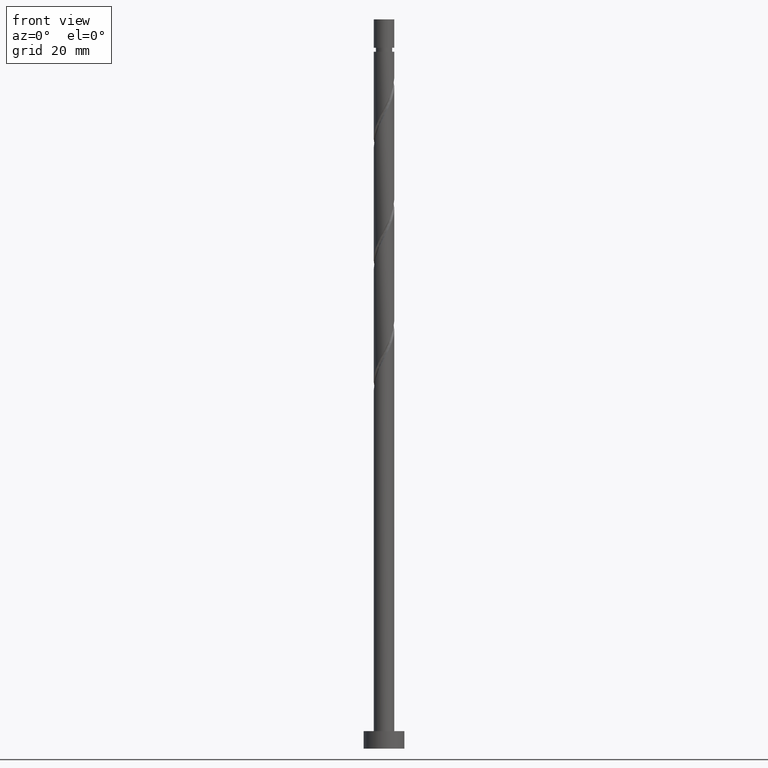
[diagram: clean part render]
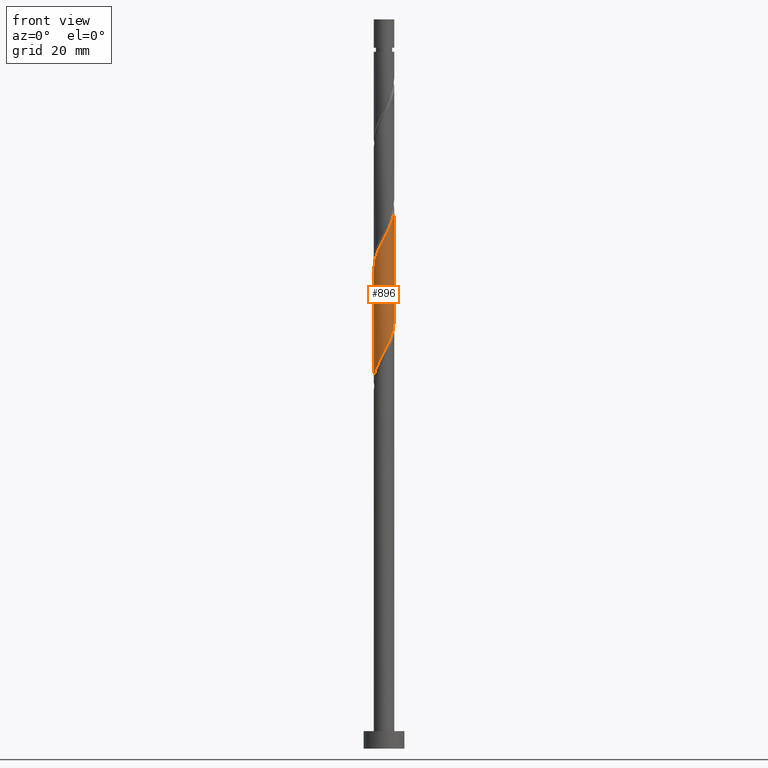
[diagram: same view with one face highlighted and labeled with its STEP entity id]
A machine part, front view. The second image highlights one B-rep face of the part: STEP entity #896.
In plain terms, the highlighted cylindrical surface (edge-blend (fillet) strip) has radius 1.75 mm, axis along (-0, -0, -1).
Its self-contained STEP definition (entity closure, byte-faithful):
#8 = EDGE_CURVE ( 'NONE', #813, #845, #542, .T. ) ;
#17 = CARTESIAN_POINT ( 'NONE',  ( 0.4741420785523611237, -1.707194785046613816, 68.92689447984147932 ) ) ;
#45 = CARTESIAN_POINT ( 'NONE',  ( 1.387052916738139796, -1.102455872546618920, 71.01022781317480792 ) ) ;
#49 = VECTOR ( 'NONE', #920, 1000.000000000000000 ) ;
#62 = CARTESIAN_POINT ( 'NONE',  ( 1.750000000000000000, 2.143131898507867804E-16, 125.0000000000000000 ) ) ;
#66 = CARTESIAN_POINT ( 'NONE',  ( 1.750000000000000000, 2.578813678711391292E-15, 73.23753025464507971 ) ) ;
#179 = CARTESIAN_POINT ( 'NONE',  ( -1.738675734985620558, -0.1987628953608118199, 63.19772781317481503 ) ) ;
#187 = CARTESIAN_POINT ( 'NONE',  ( 1.592157774964681805, -0.7263150966485025783, 91.32272781317482213 ) ) ;
#199 = CARTESIAN_POINT ( 'NONE',  ( -0.7263150966485025783, -1.592157774964681805, 86.11439447984147932 ) ) ;
#216 = CARTESIAN_POINT ( 'NONE',  ( -0.1987628953608127635, -1.738675734985623000, 87.15606114650815073 ) ) ;
#231 =( BOUNDED_CURVE ( )  B_SPLINE_CURVE ( 2, ( #1406, #1042, #1529, #808, #1544, #450, #340, #1270, #199, #332, #216, #573, #1390, #1399, #1277, #560, #464, #691, #187, #801, #1294, #1535, #582 ),
 .UNSPECIFIED., .F., .T. ) 
 B_SPLINE_CURVE_WITH_KNOTS ( ( 3, 2, 2, 2, 2, 2, 2, 2, 2, 2, 2, 3 ),
 ( 0.3045322023138552492, 0.3125000000000000000, 0.3249999999999999556, 0.3375000000000000222, 0.3499999999999999778, 0.3625000000000000444, 0.3750000000000000000, 0.3874999999999999556, 0.4000000000000000222, 0.4124999999999999778, 0.4250000000000000444, 0.4295322023138553047 ),
 .UNSPECIFIED. ) 
 CURVE ( )  GEOMETRIC_REPRESENTATION_ITEM ( )  RATIONAL_B_SPLINE_CURVE ( ( 0.9039174447099437293, 0.9019565955404731383, 0.9090909090909216062, 0.8978984914501375592, 0.9090909090909216062, 0.8978984914501375592, 0.9090909090909216062, 0.8978984914501375592, 0.9090909090909216062, 0.8978984914501375592, 0.9090909090909216062, 0.8978984914501375592, 0.9090909090909216062, 0.8978984914501375592, 0.9090909090909216062, 0.8978984914501375592, 0.9090909090909216062, 0.8978984914501375592, 0.9090909090909216062, 0.8978984914501375592, 0.9090909090909216062, 0.9050328050005858049, 0.9039174447099436183 ) ) 
 REPRESENTATION_ITEM ( '' )  );
#254 = CARTESIAN_POINT ( 'NONE',  ( 0.9784881147446409244, -1.477120764882745352, 69.96856114650815073 ) ) ;
#324 = CARTESIAN_POINT ( 'NONE',  ( -1.750000000000000000, 0.000000000000000000, 125.0000000000000000 ) ) ;
#332 = CARTESIAN_POINT ( 'NONE',  ( -0.4741420785523625669, -1.707194785046616925, 86.63522781317483634 ) ) ;
#340 = CARTESIAN_POINT ( 'NONE',  ( -1.182770515741392581, -1.289788318714684356, 85.07272781317482213 ) ) ;
#345 = CYLINDRICAL_SURFACE ( 'NONE', #1540, 1.750000000000000000 ) ;
#354 = CARTESIAN_POINT ( 'NONE',  ( 0.000000000000000000, 0.000000000000000000, 125.0000000000000000 ) ) ;
#384 = CARTESIAN_POINT ( 'NONE',  ( -0.6198749181438971689, -1.659843315075372860, 66.84356114650816494 ) ) ;
#450 = CARTESIAN_POINT ( 'NONE',  ( -1.387052916738142905, -1.102455872546620474, 84.55189447984147932 ) ) ;
#464 = CARTESIAN_POINT ( 'NONE',  ( 1.289788318714684356, -1.182770515741392581, 90.28106114650812231 ) ) ;
#520 = VERTEX_POINT ( 'NONE', #882 ) ;
#542 =( BOUNDED_CURVE ( )  B_SPLINE_CURVE ( 2, ( #1488, #878, #761, #1248, #1130, #45, #1011, #254, #1342, #17, #1377, #771, #1456, #384, #1089, #1472, #1259, #543, #1574, #1251, #179, #849, #655 ),
 .UNSPECIFIED., .F., .T. ) 
 B_SPLINE_CURVE_WITH_KNOTS ( ( 3, 2, 2, 2, 2, 2, 2, 2, 2, 2, 2, 3 ),
 ( 0.8045322023138550271, 0.8125000000000000000, 0.8249999999999999556, 0.8375000000000000222, 0.8499999999999999778, 0.8625000000000000444, 0.8750000000000000000, 0.8874999999999999556, 0.9000000000000000222, 0.9124999999999999778, 0.9250000000000000444, 0.9295322023138553602 ),
 .UNSPECIFIED. ) 
 CURVE ( )  GEOMETRIC_REPRESENTATION_ITEM ( )  RATIONAL_B_SPLINE_CURVE ( ( 0.9039174447099374010, 0.9019565955404664770, 0.9090909090909150558, 0.8978984914501311199, 0.9090909090909150558, 0.8978984914501311199, 0.9090909090909150558, 0.8978984914501311199, 0.9090909090909150558, 0.8978984914501311199, 0.9090909090909150558, 0.8978984914501311199, 0.9090909090909150558, 0.8978984914501311199, 0.9090909090909150558, 0.8978984914501311199, 0.9090909090909150558, 0.8978984914501311199, 0.9090909090909150558, 0.8978984914501311199, 0.9090909090909150558, 0.9050328050005793656, 0.9039174447099371790 ) ) 
 REPRESENTATION_ITEM ( '' )  );
#543 = CARTESIAN_POINT ( 'NONE',  ( -1.477120764882744908, -0.9784881147446409244, 64.76022781317480792 ) ) ;
#547 = CARTESIAN_POINT ( 'NONE',  ( -1.750000000000003109, -1.611758549194608562E-15, 82.32459203837122175 ) ) ;
#560 = CARTESIAN_POINT ( 'NONE',  ( 1.102455872546620030, -1.387052916738142905, 89.76022781317483634 ) ) ;
#562 = LINE ( 'NONE', #62, #49 ) ;
#566 = EDGE_LOOP ( 'NONE', ( #969, #1200, #1323, #1283 ) ) ;
#573 = CARTESIAN_POINT ( 'NONE',  ( 0.07661628783073691495, -1.770156684924629964, 87.67689447984149353 ) ) ;
#582 = CARTESIAN_POINT ( 'NONE',  ( 1.750000000000003109, 1.349379250488509398E-15, 92.74125870503786473 ) ) ;
#646 = LINE ( 'NONE', #324, #1568 ) ;
#655 = CARTESIAN_POINT ( 'NONE',  ( -1.750000000000000000, 2.061551632690792561E-15, 62.82086358797840830 ) ) ;
#691 = CARTESIAN_POINT ( 'NONE',  ( 1.477120764882747350, -0.9784881147446428118, 90.80189447984146511 ) ) ;
#761 = CARTESIAN_POINT ( 'NONE',  ( 1.715000000000000080, -0.3482456029873174375, 72.57272781317479371 ) ) ;
#771 = CARTESIAN_POINT ( 'NONE',  ( -0.07661628783073755333, -1.770156684924626633, 67.88522781317480792 ) ) ;
#801 = CARTESIAN_POINT ( 'NONE',  ( 1.707194785046616925, -0.4741420785523625669, 91.84356114650816494 ) ) ;
#808 = CARTESIAN_POINT ( 'NONE',  ( -1.659843315075376413, -0.6198749181438976130, 83.51022781317482213 ) ) ;
#813 = VERTEX_POINT ( 'NONE', #66 ) ;
#832 = EDGE_CURVE ( 'NONE', #1524, #520, #231, .T. ) ;
#845 = VERTEX_POINT ( 'NONE', #1026 ) ;
#849 = CARTESIAN_POINT ( 'NONE',  ( -1.750000000000000444, -0.09970404053125397903, 63.01037467718568763 ) ) ;
#864 = DIRECTION ( 'NONE',  ( -1.000000000000000000, 0.000000000000000000, 0.000000000000000000 ) ) ;
#878 = CARTESIAN_POINT ( 'NONE',  ( 1.750000000000000666, -0.1758816176703585921, 72.90322567923722374 ) ) ;
#882 = CARTESIAN_POINT ( 'NONE',  ( 1.750000000000003109, 1.349379250488509398E-15, 92.74125870503787894 ) ) ;
#896 = ADVANCED_FACE ( 'NONE', ( #1559 ), #345, .T. ) ;
#920 = DIRECTION ( 'NONE',  ( -0.000000000000000000, -0.000000000000000000, -1.000000000000000000 ) ) ;
#969 = ORIENTED_EDGE ( 'NONE', *, *, #1514, .F. ) ;
#1011 = CARTESIAN_POINT ( 'NONE',  ( 1.182770515741390138, -1.289788318714682136, 70.48939447984149353 ) ) ;
#1013 = DIRECTION ( 'NONE',  ( -0.000000000000000000, -0.000000000000000000, -1.000000000000000000 ) ) ;
#1026 = CARTESIAN_POINT ( 'NONE',  ( -1.749999999999999778, 2.061551632690792561E-15, 62.82086358797840830 ) ) ;
#1042 = CARTESIAN_POINT ( 'NONE',  ( -1.750000000000002887, -0.1758816176703630607, 82.65889661377906350 ) ) ;
#1089 = CARTESIAN_POINT ( 'NONE',  ( -0.8611653953452580446, -1.523448115906756328, 66.32272781317479371 ) ) ;
#1121 = DIRECTION ( 'NONE',  ( -0.000000000000000000, -0.000000000000000000, -1.000000000000000000 ) ) ;
#1130 = CARTESIAN_POINT ( 'NONE',  ( 1.523448115906756328, -0.8611653953452580446, 71.53106114650815073 ) ) ;
#1135 = EDGE_CURVE ( 'NONE', #1524, #845, #646, .T. ) ;
#1200 = ORIENTED_EDGE ( 'NONE', *, *, #832, .F. ) ;
#1248 = CARTESIAN_POINT ( 'NONE',  ( 1.659843315075372860, -0.6198749181438975020, 72.05189447984149353 ) ) ;
#1251 = CARTESIAN_POINT ( 'NONE',  ( -1.707194785046613816, -0.4741420785523612347, 63.71856114650814362 ) ) ;
#1259 = CARTESIAN_POINT ( 'NONE',  ( -1.289788318714682136, -1.182770515741390138, 65.28106114650813652 ) ) ;
#1270 = CARTESIAN_POINT ( 'NONE',  ( -0.9784881147446428118, -1.477120764882747350, 85.59356114650819336 ) ) ;
#1277 = CARTESIAN_POINT ( 'NONE',  ( 0.8611653953452585997, -1.523448115906759437, 89.23939447984147932 ) ) ;
#1283 = ORIENTED_EDGE ( 'NONE', *, *, #8, .F. ) ;
#1294 = CARTESIAN_POINT ( 'NONE',  ( 1.738675734985623000, -0.1987628953608128468, 92.36439447984147932 ) ) ;
#1323 = ORIENTED_EDGE ( 'NONE', *, *, #1135, .T. ) ;
#1342 = CARTESIAN_POINT ( 'NONE',  ( 0.7263150966485009130, -1.592157774964679806, 69.44772781317480792 ) ) ;
#1377 = CARTESIAN_POINT ( 'NONE',  ( 0.1987628953608116811, -1.738675734985620558, 68.40606114650813652 ) ) ;
#1390 = CARTESIAN_POINT ( 'NONE',  ( 0.3482456029873171599, -1.715000000000003411, 88.19772781317480792 ) ) ;
#1399 = CARTESIAN_POINT ( 'NONE',  ( 0.6198749181438973910, -1.659843315075376635, 88.71856114650817915 ) ) ;
#1406 = CARTESIAN_POINT ( 'NONE',  ( -1.750000000000003109, -1.611758549194608562E-15, 82.32459203837122175 ) ) ;
#1456 = CARTESIAN_POINT ( 'NONE',  ( -0.3482456029873172709, -1.715000000000000080, 67.36439447984146511 ) ) ;
#1472 = CARTESIAN_POINT ( 'NONE',  ( -1.102455872546618476, -1.387052916738139796, 65.80189447984146511 ) ) ;
#1488 = CARTESIAN_POINT ( 'NONE',  ( 1.750000000000000000, 2.578813678711391292E-15, 73.23753025464507971 ) ) ;
#1514 = EDGE_CURVE ( 'NONE', #520, #813, #562, .T. ) ;
#1524 = VERTEX_POINT ( 'NONE', #547 ) ;
#1529 = CARTESIAN_POINT ( 'NONE',  ( -1.715000000000003411, -0.3482456029873172709, 82.98939447984146511 ) ) ;
#1535 = CARTESIAN_POINT ( 'NONE',  ( 1.750000000000003553, -0.09970404053125610233, 92.55174761583060672 ) ) ;
#1540 = AXIS2_PLACEMENT_3D ( 'NONE', #354, #1121, #864 ) ;
#1544 = CARTESIAN_POINT ( 'NONE',  ( -1.523448115906759437, -0.8611653953452587107, 84.03106114650812231 ) ) ;
#1559 = FACE_OUTER_BOUND ( 'NONE', #566, .T. ) ;
#1568 = VECTOR ( 'NONE', #1013, 1000.000000000000000 ) ;
#1574 = CARTESIAN_POINT ( 'NONE',  ( -1.592157774964679806, -0.7263150966485009130, 64.23939447984146511 ) ) ;